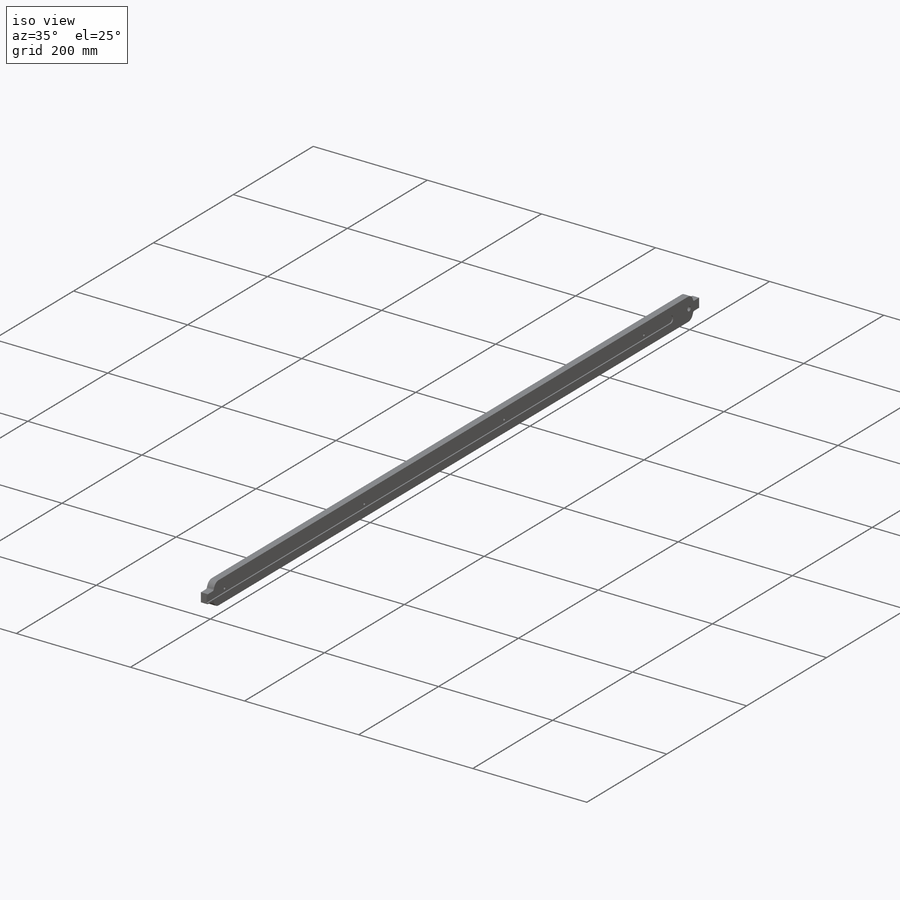
[diagram: iso view]
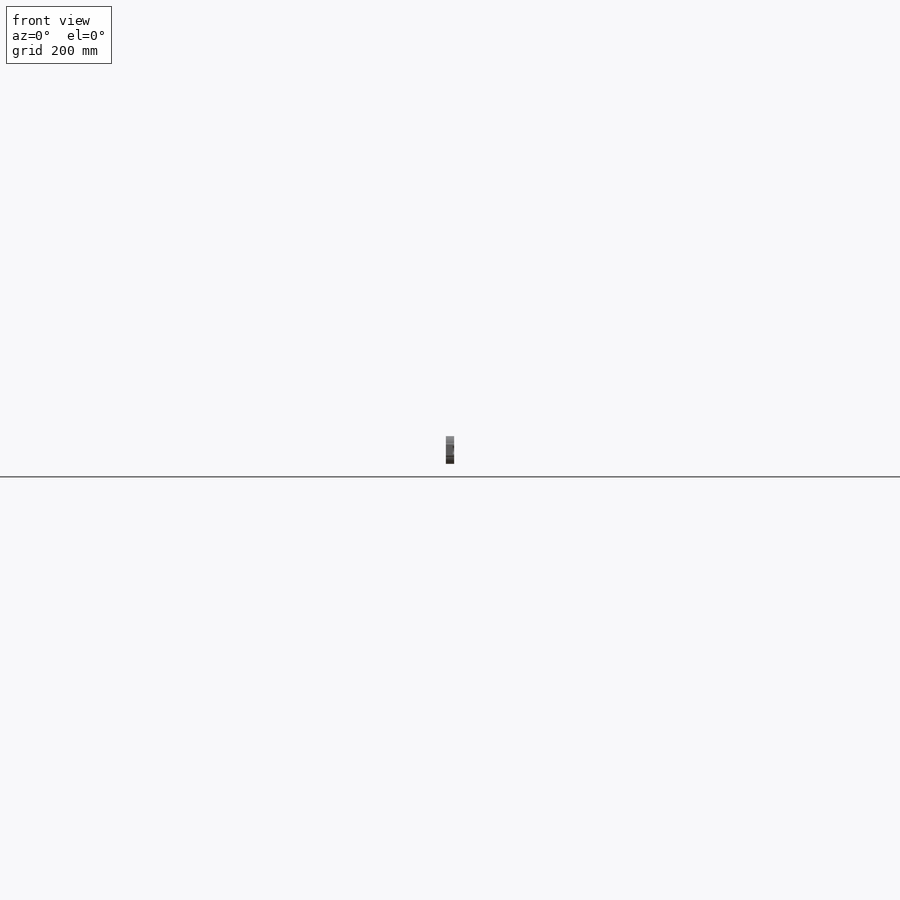
[diagram: front view]
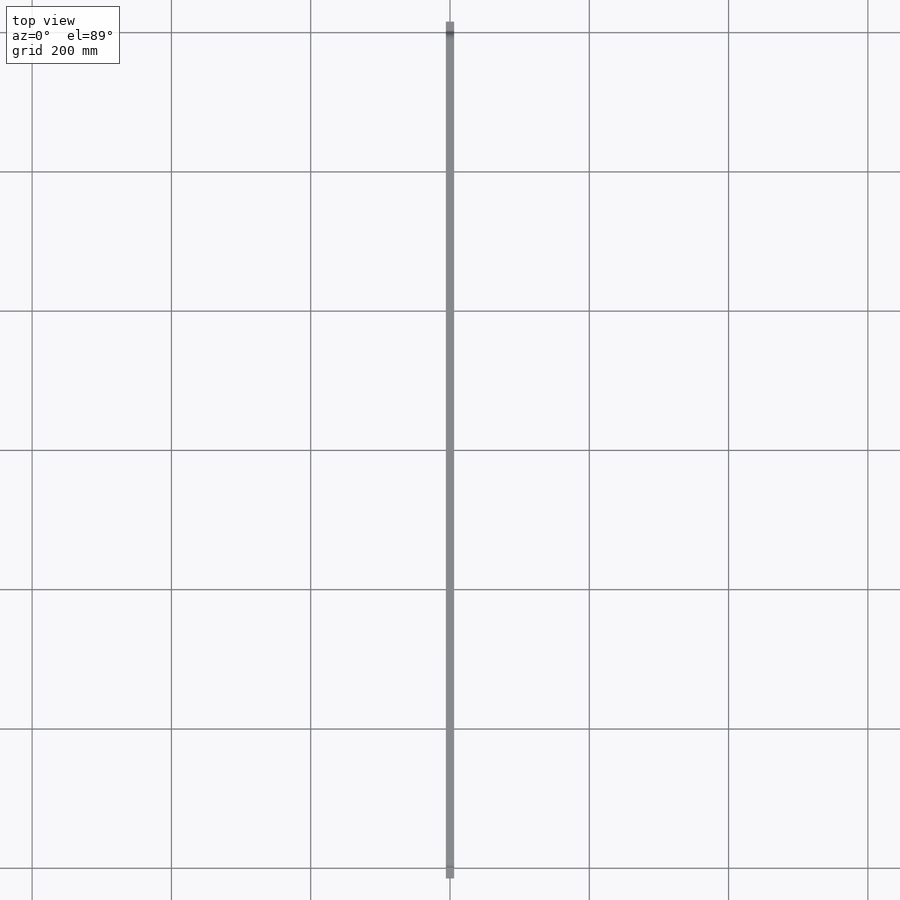
[diagram: top view]
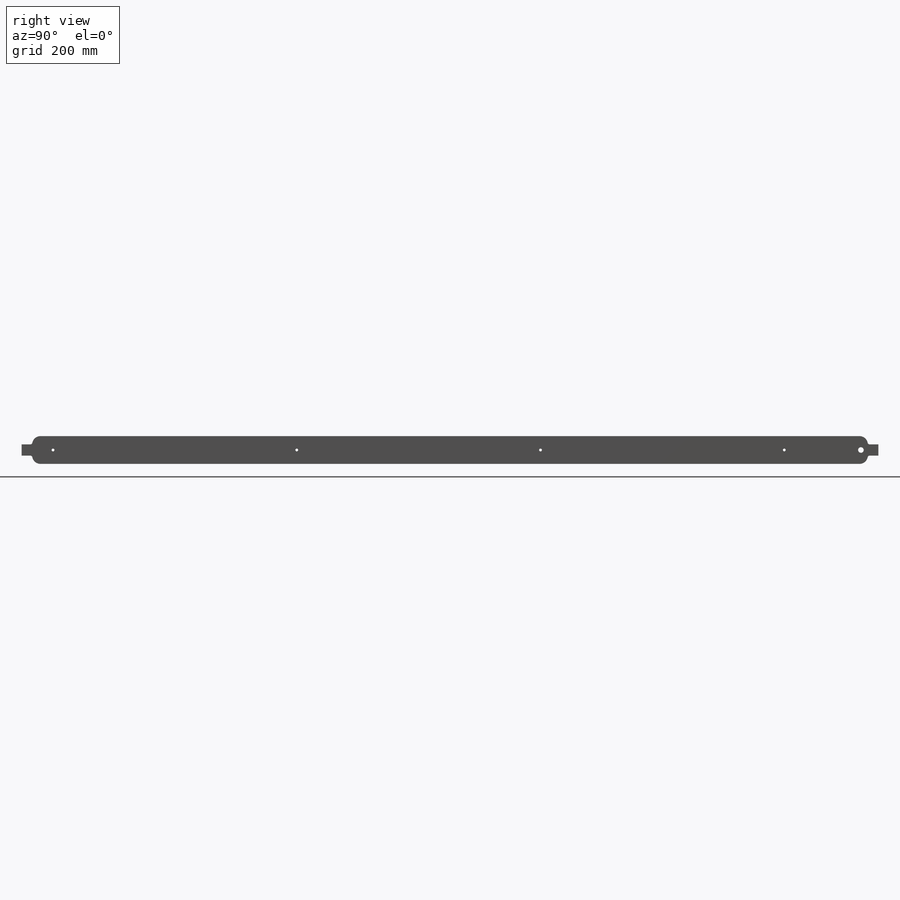
[diagram: right view]
SOLIDWORKS PART (.sldprt)
format: sldprt  version: not decoded by parser v0  size: 497,152 bytes
history: native  units: mm
features: sketch x7, fillet x3, cut_extrude x3, extrude x2, material x1, hole x1, pattern_linear x1 (+13 scaffold rows collapsed)
feature tree (31):
  scaffold x13  (default folders/planes/origin — collapsed)
  material  "Pine"
  sketch  "Sketch1"  dims[D1=12.0mm D2=40.0mm]
  extrude  "Boss-Extrude1"  Depth=1200mm
  fillet  "Fillet1"  Radius=12mm
  sketch  "Sketch2"  dims[D1=12.0mm D2=50.0mm]
  cut_extrude  "Cut-Extrude1"  Depth=2mm
  fillet  "Fillet2"  Radius=5mm
  sketch  "Sketch3"  dims[D1=8.0mm D2=10.0mm]
  cut_extrude  "Cut-Extrude2"  [1 undecoded]
  hole  "Ø4.0 (4) Diameter Hole1"  Diameter=4mm Depth=10mm
  sketch  "Sketch5"  dims[D1=30.0mm]
  sketch  "Sketch4"  dims[hole-wizard template sketch: 60 standard entries collapsed; hole parameters kept: c18.Thru Hole Depth=10.0mm]
  pattern_linear  "LPattern1"  Count1=4 Count2=1 Spacing1=350mm Spacing2=10mm
  sketch  "Sketch6"  dims[D1=15.0mm D2=15.0mm]
  extrude  "Boss-Extrude2"  Depth=12mm
  sketch  "Sketch7"  dims[D1=0.0mm]
  cut_extrude  "Cut-Extrude6"  [1 undecoded]
  fillet  "Fillet3"  Radius=3mm
decode coverage: 15 of 17 modeling features carry decoded parameters
note: ~ marks probable driven/reference dimensions
note: 2 parameter values undecoded
note: suppression state not decoded; provenance and decode notes live in map.json
